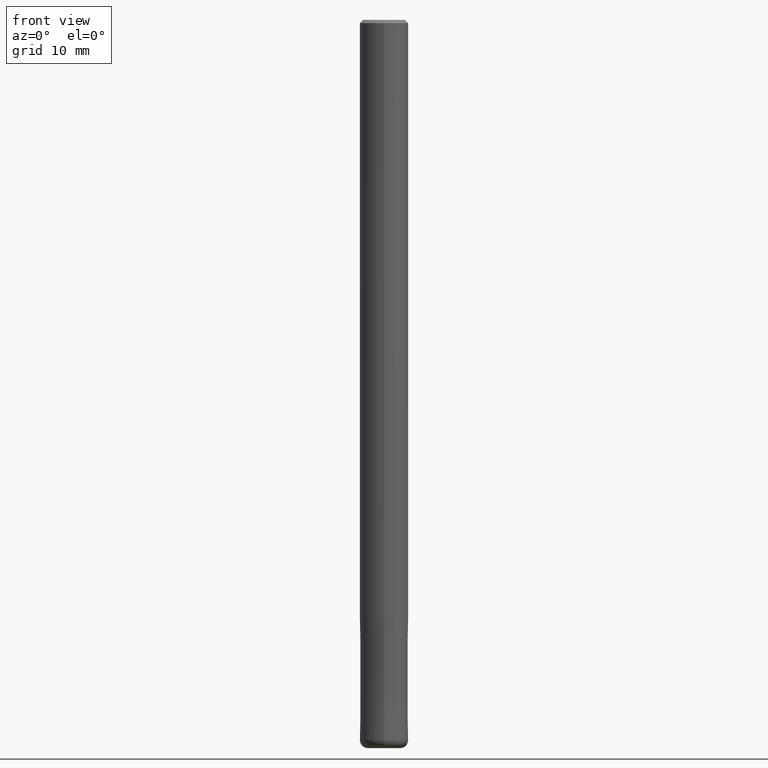
[diagram: clean part render]
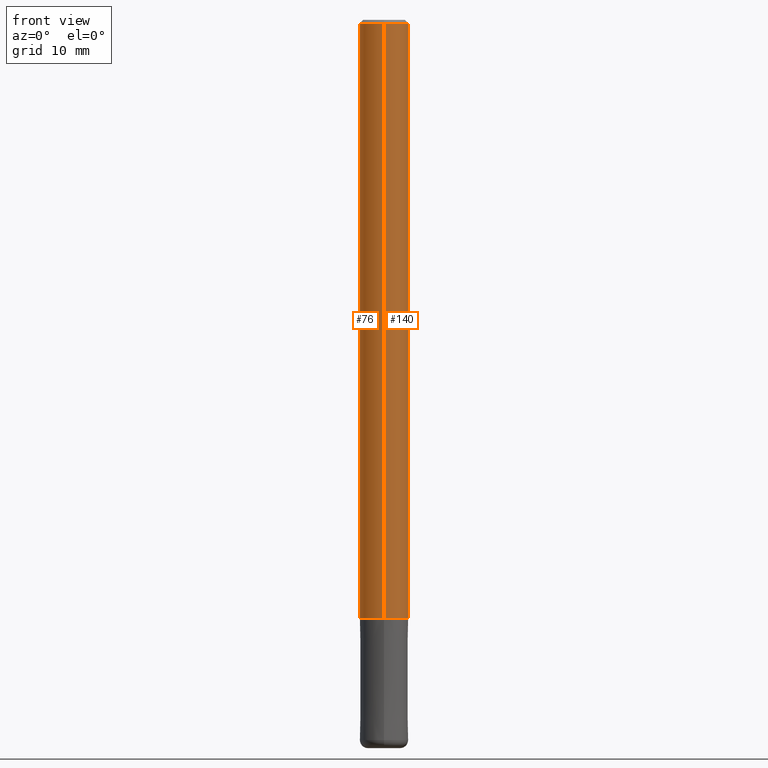
[diagram: same view with one multi-face feature highlighted, each face labeled with its STEP entity id]
A machine part, front view. The highlighted faces form ONE feature: a constant-radius fillet chain: 2 tangent blend faces with common blend radius 3 mm. The faces share edges in the B-rep.
Their STEP definitions:
[1] entity #76 (Cylinder):
#68=VERTEX_POINT('',#172);
#70=EDGE_CURVE('',#72,#68,#174,.T.);
#72=VERTEX_POINT('',#176);
#76=ADVANCED_FACE('',(#180),#181,.T.);
#80=VERTEX_POINT('',#185);
#92=EDGE_CURVE('',#80,#142,#198,.T.);
#134=EDGE_CURVE('',#80,#68,#245,.T.);
#142=VERTEX_POINT('',#255);
#148=EDGE_CURVE('',#142,#72,#261,.T.);
#172=CARTESIAN_POINT('',(0.0,3.0,-74.0));
#174=LINE('',#281,#282);
#176=CARTESIAN_POINT('',(0.0,3.0,-0.400000000000006));
#180=FACE_OUTER_BOUND('',#288,.T.);
#181=CYLINDRICAL_SURFACE('',#289,3.0);
#185=CARTESIAN_POINT('',(3.67381906146713E-016,-3.0,-74.0));
#198=LINE('',#310,#311);
#245=CIRCLE('',#371,3.0);
#255=CARTESIAN_POINT('',(3.67381906146713E-016,-3.0,-0.400000000000006));
#261=CIRCLE('',#391,3.0);
#281=CARTESIAN_POINT('',(-3.67381906146713E-016,3.0,-37.2));
#282=VECTOR('',#403,1.0);
#288=EDGE_LOOP('',(#405,#406,#407,#408));
#289=AXIS2_PLACEMENT_3D('',#409,#410,#411);
#310=CARTESIAN_POINT('',(3.67381906146713E-016,-3.0,-37.2));
#311=VECTOR('',#426,1.0);
#371=AXIS2_PLACEMENT_3D('',#486,#487,#488);
#391=AXIS2_PLACEMENT_3D('',#514,#515,#516);
#403=DIRECTION('',(0.0,0.0,-1.0));
#405=ORIENTED_EDGE('',*,*,#70,.T.);
#406=ORIENTED_EDGE('',*,*,#134,.F.);
#407=ORIENTED_EDGE('',*,*,#92,.T.);
#408=ORIENTED_EDGE('',*,*,#148,.T.);
#409=CARTESIAN_POINT('',(0.0,0.0,-37.2));
#410=DIRECTION('',(-0.0,-0.0,1.0));
#411=DIRECTION('',(0.0,1.0,0.0));
#426=DIRECTION('',(-0.0,-0.0,1.0));
#486=CARTESIAN_POINT('',(0.0,0.0,-74.0));
#487=DIRECTION('',(0.0,0.0,-1.0));
#488=DIRECTION('',(0.0,1.0,0.0));
#514=CARTESIAN_POINT('',(0.0,0.0,-0.400000000000006));
#515=DIRECTION('',(0.0,0.0,-1.0));
#516=DIRECTION('',(0.0,1.0,0.0));
[2] entity #140 (Cylinder):
#68=VERTEX_POINT('',#172);
#70=EDGE_CURVE('',#72,#68,#174,.T.);
#72=VERTEX_POINT('',#176);
#80=VERTEX_POINT('',#185);
#88=EDGE_CURVE('',#68,#80,#194,.T.);
#92=EDGE_CURVE('',#80,#142,#198,.T.);
#136=EDGE_CURVE('',#72,#142,#247,.T.);
#140=ADVANCED_FACE('',(#252),#253,.T.);
#142=VERTEX_POINT('',#255);
#172=CARTESIAN_POINT('',(0.0,3.0,-74.0));
#174=LINE('',#281,#282);
#176=CARTESIAN_POINT('',(0.0,3.0,-0.400000000000006));
#185=CARTESIAN_POINT('',(3.67381906146713E-016,-3.0,-74.0));
#194=CIRCLE('',#303,3.0);
#198=LINE('',#310,#311);
#247=CIRCLE('',#374,3.0);
#252=FACE_OUTER_BOUND('',#379,.T.);
#253=CYLINDRICAL_SURFACE('',#380,3.0);
#255=CARTESIAN_POINT('',(3.67381906146713E-016,-3.0,-0.400000000000006));
#281=CARTESIAN_POINT('',(-3.67381906146713E-016,3.0,-37.2));
#282=VECTOR('',#403,1.0);
#303=AXIS2_PLACEMENT_3D('',#422,#423,#424);
#310=CARTESIAN_POINT('',(3.67381906146713E-016,-3.0,-37.2));
#311=VECTOR('',#426,1.0);
#374=AXIS2_PLACEMENT_3D('',#489,#490,#491);
#379=EDGE_LOOP('',(#501,#502,#503,#504));
#380=AXIS2_PLACEMENT_3D('',#505,#506,#507);
#403=DIRECTION('',(0.0,0.0,-1.0));
#422=CARTESIAN_POINT('',(0.0,0.0,-74.0));
#423=DIRECTION('',(0.0,0.0,-1.0));
#424=DIRECTION('',(0.0,1.0,0.0));
#426=DIRECTION('',(-0.0,-0.0,1.0));
#489=CARTESIAN_POINT('',(0.0,0.0,-0.400000000000006));
#490=DIRECTION('',(0.0,0.0,-1.0));
#491=DIRECTION('',(0.0,1.0,0.0));
#501=ORIENTED_EDGE('',*,*,#70,.F.);
#502=ORIENTED_EDGE('',*,*,#136,.T.);
#503=ORIENTED_EDGE('',*,*,#92,.F.);
#504=ORIENTED_EDGE('',*,*,#88,.F.);
#505=CARTESIAN_POINT('',(0.0,0.0,-37.2));
#506=DIRECTION('',(-0.0,-0.0,1.0));
#507=DIRECTION('',(0.0,1.0,0.0));